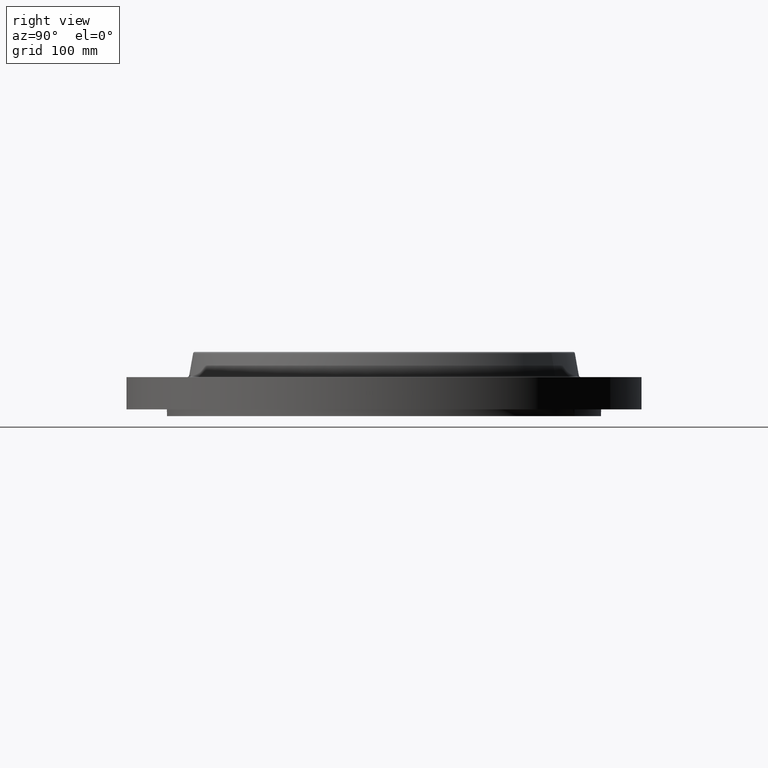
[diagram: clean part render]
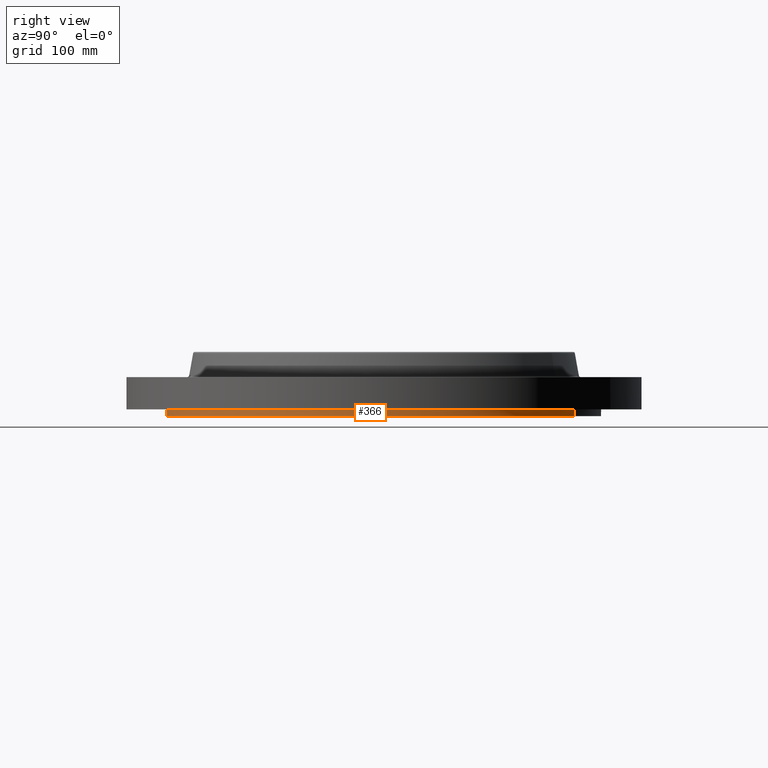
[diagram: same view with one face highlighted and labeled with its STEP entity id]
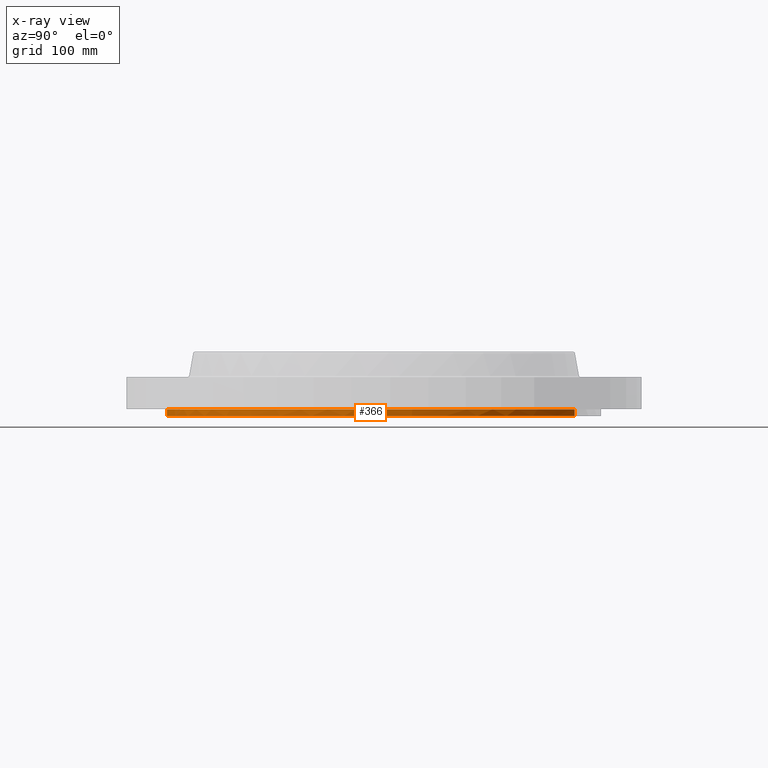
[diagram: x-ray of the same camera — body ghosted, the highlighted face saturated]
A machine part, right view. The second image highlights one B-rep face of the part: STEP entity #366.
The next image is the same camera in x-ray: the body ghosted, the highlighted face saturated — about 0% of this face is hidden behind the body in this view.
In plain terms, the highlighted cylindrical surface (partial cylindrical patch) has radius 203.2 mm, axis along (0, 0, -1).
Its self-contained STEP definition (entity closure, byte-faithful):
#202=AXIS2_PLACEMENT_3D('Circle Axis2P3D',#200,#201,$) ;
#231=AXIS2_PLACEMENT_3D('Cylinder Axis2P3D',#228,#229,#230) ;
#309=AXIS2_PLACEMENT_3D('Circle Axis2P3D',#307,#308,$) ;
#316=AXIS2_PLACEMENT_3D('Circle Axis2P3D',#314,#315,$) ;
#323=AXIS2_PLACEMENT_3D('Circle Axis2P3D',#321,#322,$) ;
#330=AXIS2_PLACEMENT_3D('Circle Axis2P3D',#328,#329,$) ;
#337=AXIS2_PLACEMENT_3D('Circle Axis2P3D',#335,#336,$) ;
#344=AXIS2_PLACEMENT_3D('Circle Axis2P3D',#342,#343,$) ;
#351=AXIS2_PLACEMENT_3D('Circle Axis2P3D',#349,#350,$) ;
#195=CARTESIAN_POINT('Vertex',(-3.83540430885,-7.02066049515,-0.250000000001)) ;
#197=CARTESIAN_POINT('Vertex',(3.83540430885,7.02066049515,-0.250000000001)) ;
#200=CARTESIAN_POINT('Axis2P3D Location',(0.,0.,-0.250000000001)) ;
#228=CARTESIAN_POINT('Axis2P3D Location',(0.,0.,0.935000000004)) ;
#233=CARTESIAN_POINT('Line Origine',(-3.83540430885,-7.02066049515,-0.125)) ;
#237=CARTESIAN_POINT('Vertex',(-3.83540430885,-7.02066049515,8.39223703654E-016)) ;
#286=CARTESIAN_POINT('Vertex',(3.83540430885,7.02066049515,8.39223703654E-016)) ;
#289=CARTESIAN_POINT('Line Origine',(3.83540430885,7.02066049515,-0.125)) ;
#307=CARTESIAN_POINT('Axis2P3D Location',(0.,0.,9.79094320929E-016)) ;
#311=CARTESIAN_POINT('Vertex',(4.00000000002,6.9282032303,0.)) ;
#314=CARTESIAN_POINT('Axis2P3D Location',(0.,0.,9.79094320929E-016)) ;
#318=CARTESIAN_POINT('Vertex',(6.9282032303,4.00000000002,0.)) ;
#321=CARTESIAN_POINT('Axis2P3D Location',(0.,0.,9.79094320929E-016)) ;
#325=CARTESIAN_POINT('Vertex',(8.00000000003,0.,0.)) ;
#328=CARTESIAN_POINT('Axis2P3D Location',(0.,0.,9.79094320929E-016)) ;
#332=CARTESIAN_POINT('Vertex',(6.9282032303,-4.00000000002,0.)) ;
#335=CARTESIAN_POINT('Axis2P3D Location',(0.,0.,9.79094320929E-016)) ;
#339=CARTESIAN_POINT('Vertex',(4.00000000002,-6.9282032303,0.)) ;
#342=CARTESIAN_POINT('Axis2P3D Location',(0.,0.,9.79094320929E-016)) ;
#346=CARTESIAN_POINT('Vertex',(1.4467282801E-015,-8.00000000003,0.)) ;
#349=CARTESIAN_POINT('Axis2P3D Location',(0.,0.,9.79094320929E-016)) ;
#201=DIRECTION('Axis2P3D Direction',(0.,0.,-0.0393700787402)) ;
#229=DIRECTION('Axis2P3D Direction',(0.,0.,-0.0393700787402)) ;
#230=DIRECTION('Axis2P3D XDirection',(0.0188750212049,0.0345504945626,0.)) ;
#234=DIRECTION('Vector Direction',(0.,0.,-0.0393700787402)) ;
#290=DIRECTION('Vector Direction',(0.,0.,-0.0393700787402)) ;
#308=DIRECTION('Axis2P3D Direction',(0.,0.,-0.0393700787402)) ;
#315=DIRECTION('Axis2P3D Direction',(0.,0.,-0.0393700787402)) ;
#322=DIRECTION('Axis2P3D Direction',(0.,0.,-0.0393700787402)) ;
#329=DIRECTION('Axis2P3D Direction',(0.,0.,-0.0393700787402)) ;
#336=DIRECTION('Axis2P3D Direction',(0.,0.,-0.0393700787402)) ;
#343=DIRECTION('Axis2P3D Direction',(0.,0.,-0.0393700787402)) ;
#350=DIRECTION('Axis2P3D Direction',(0.,0.,-0.0393700787402)) ;
#235=VECTOR('Line Direction',#234,0.0393700787402) ;
#291=VECTOR('Line Direction',#290,0.0393700787402) ;
#355=ORIENTED_EDGE('',*,*,#204,.F.) ;
#356=ORIENTED_EDGE('',*,*,#293,.T.) ;
#357=ORIENTED_EDGE('',*,*,#313,.T.) ;
#358=ORIENTED_EDGE('',*,*,#320,.T.) ;
#359=ORIENTED_EDGE('',*,*,#327,.T.) ;
#360=ORIENTED_EDGE('',*,*,#334,.T.) ;
#361=ORIENTED_EDGE('',*,*,#341,.T.) ;
#362=ORIENTED_EDGE('',*,*,#348,.T.) ;
#363=ORIENTED_EDGE('',*,*,#353,.T.) ;
#364=ORIENTED_EDGE('',*,*,#239,.F.) ;
#366=ADVANCED_FACE('PartBody',(#365),#232,.T.) ;
#203=CIRCLE('generated circle',#202,8.00000000003) ;
#310=CIRCLE('generated circle',#309,8.00000000003) ;
#317=CIRCLE('generated circle',#316,8.00000000003) ;
#324=CIRCLE('generated circle',#323,8.00000000003) ;
#331=CIRCLE('generated circle',#330,8.00000000003) ;
#338=CIRCLE('generated circle',#337,8.00000000003) ;
#345=CIRCLE('generated circle',#344,8.00000000003) ;
#352=CIRCLE('generated circle',#351,8.00000000003) ;
#232=CYLINDRICAL_SURFACE('generated cylinder',#231,8.00000000003) ;
#204=EDGE_CURVE('',#198,#196,#203,.T.) ;
#239=EDGE_CURVE('',#196,#238,#236,.F.) ;
#293=EDGE_CURVE('',#198,#287,#292,.F.) ;
#313=EDGE_CURVE('',#287,#312,#310,.T.) ;
#320=EDGE_CURVE('',#312,#319,#317,.T.) ;
#327=EDGE_CURVE('',#319,#326,#324,.T.) ;
#334=EDGE_CURVE('',#326,#333,#331,.T.) ;
#341=EDGE_CURVE('',#333,#340,#338,.T.) ;
#348=EDGE_CURVE('',#340,#347,#345,.T.) ;
#353=EDGE_CURVE('',#347,#238,#352,.T.) ;
#354=EDGE_LOOP('',(#355,#356,#357,#358,#359,#360,#361,#362,#363,#364)) ;
#365=FACE_OUTER_BOUND('',#354,.T.) ;
#236=LINE('Line',#233,#235) ;
#292=LINE('Line',#289,#291) ;
#196=VERTEX_POINT('',#195) ;
#198=VERTEX_POINT('',#197) ;
#238=VERTEX_POINT('',#237) ;
#287=VERTEX_POINT('',#286) ;
#312=VERTEX_POINT('',#311) ;
#319=VERTEX_POINT('',#318) ;
#326=VERTEX_POINT('',#325) ;
#333=VERTEX_POINT('',#332) ;
#340=VERTEX_POINT('',#339) ;
#347=VERTEX_POINT('',#346) ;